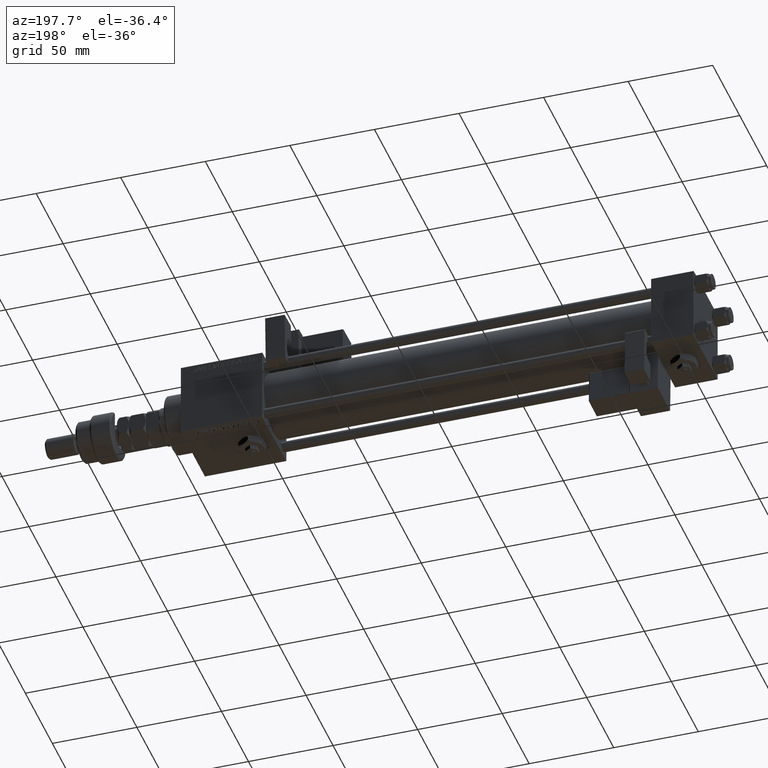
[diagram: clean part render]
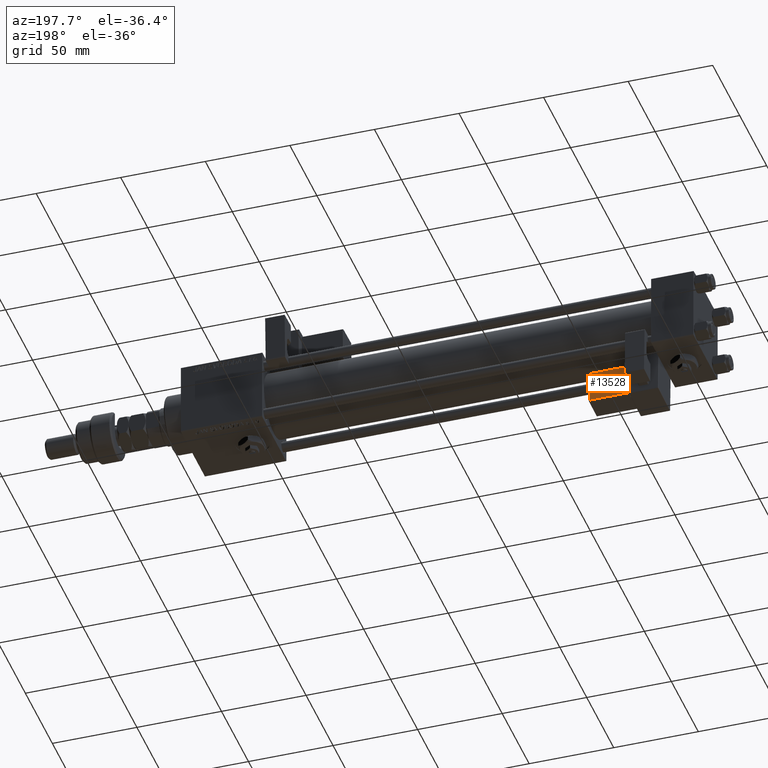
[diagram: same view with one face highlighted and labeled with its STEP entity id]
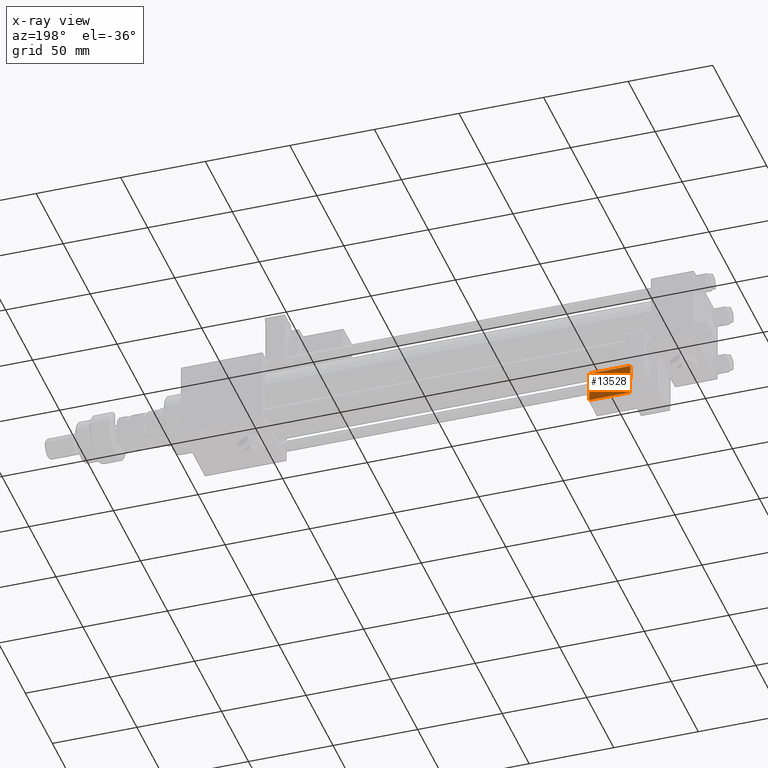
[diagram: x-ray of the same camera — body ghosted, the highlighted face saturated]
A machine part, auxiliary view. The second image highlights one B-rep face of the part: STEP entity #13528.
The next image is the same camera in x-ray: the body ghosted, the highlighted face saturated — about 0% of this face is hidden behind the body in this view.
In plain terms, the highlighted planar face has unit normal (0, -0.9994, -0.0353).
Its self-contained STEP definition (entity closure, byte-faithful):
#1843 = EDGE_CURVE ( 'NONE', #3329, #46901, #11866, .T. ) ;
#2242 = ORIENTED_EDGE ( 'NONE', *, *, #14323, .T. ) ;
#2860 = CARTESIAN_POINT ( 'NONE',  ( 33.25000000000000000, -15.25000000000000000, 2.500000000000009326 ) ) ;
#3329 = VERTEX_POINT ( 'NONE', #30387 ) ;
#4020 = CARTESIAN_POINT ( 'NONE',  ( 33.25000000000000000, -15.25000000000000000, 21.50000000000000355 ) ) ;
#4927 = LINE ( 'NONE', #31349, #41363 ) ;
#6321 = VECTOR ( 'NONE', #42492, 1000.000000000000000 ) ;
#7796 = DIRECTION ( 'NONE',  ( -1.334402673828313339E-16, 0.000000000000000000, 1.000000000000000000 ) ) ;
#11866 = LINE ( 'NONE', #42644, #54434 ) ;
#13528 = ADVANCED_FACE ( 'NONE', ( #16837 ), #30181, .F. ) ;
#14323 = EDGE_CURVE ( 'NONE', #21414, #3329, #16641, .T. ) ;
#16641 = LINE ( 'NONE', #51498, #6321 ) ;
#16837 = FACE_OUTER_BOUND ( 'NONE', #20055, .T. ) ;
#20055 = EDGE_LOOP ( 'NONE', ( #2242, #28950, #31221, #40991 ) ) ;
#21414 = VERTEX_POINT ( 'NONE', #2860 ) ;
#27696 = CARTESIAN_POINT ( 'NONE',  ( 33.25000000000000000, -15.25000000000000000, 2.000000000000008438 ) ) ;
#28950 = ORIENTED_EDGE ( 'NONE', *, *, #1843, .T. ) ;
#30181 = PLANE ( 'NONE',  #52258 ) ;
#30387 = CARTESIAN_POINT ( 'NONE',  ( 9.250000000000003553, -15.25000000000000000, 2.500000000000005773 ) ) ;
#31221 = ORIENTED_EDGE ( 'NONE', *, *, #34435, .T. ) ;
#31349 = CARTESIAN_POINT ( 'NONE',  ( 33.75000000000000000, -15.25000000000000000, 21.50000000000000355 ) ) ;
#33971 = DIRECTION ( 'NONE',  ( 0.000000000000000000, -1.000000000000000000, 0.000000000000000000 ) ) ;
#34435 = EDGE_CURVE ( 'NONE', #46901, #55291, #4927, .T. ) ;
#34685 = CARTESIAN_POINT ( 'NONE',  ( 9.250000000000001776, -15.25000000000000000, 21.50000000000000000 ) ) ;
#40471 = DIRECTION ( 'NONE',  ( 1.734723475976807341E-16, -0.000000000000000000, -1.000000000000000000 ) ) ;
#40991 = ORIENTED_EDGE ( 'NONE', *, *, #47812, .T. ) ;
#41363 = VECTOR ( 'NONE', #49369, 1000.000000000000000 ) ;
#42492 = DIRECTION ( 'NONE',  ( -1.000000000000000000, 0.000000000000000000, -1.334402673828313339E-16 ) ) ;
#42644 = CARTESIAN_POINT ( 'NONE',  ( 9.250000000000001776, -15.25000000000000000, 22.00000000000000355 ) ) ;
#46901 = VERTEX_POINT ( 'NONE', #34685 ) ;
#47812 = EDGE_CURVE ( 'NONE', #55291, #21414, #49198, .T. ) ;
#47897 = CARTESIAN_POINT ( 'NONE',  ( 33.75000000000000000, -15.25000000000000000, 22.00000000000000711 ) ) ;
#49198 = LINE ( 'NONE', #27696, #52180 ) ;
#49369 = DIRECTION ( 'NONE',  ( 1.000000000000000000, -0.000000000000000000, 1.334402673828313339E-16 ) ) ;
#51498 = CARTESIAN_POINT ( 'NONE',  ( 33.75000000000000000, -15.25000000000000000, 2.500000000000009326 ) ) ;
#51695 = DIRECTION ( 'NONE',  ( 0.000000000000000000, -0.000000000000000000, -1.000000000000000000 ) ) ;
#52180 = VECTOR ( 'NONE', #40471, 1000.000000000000000 ) ;
#52258 = AXIS2_PLACEMENT_3D ( 'NONE', #47897, #33971, #51695 ) ;
#54434 = VECTOR ( 'NONE', #7796, 1000.000000000000000 ) ;
#55291 = VERTEX_POINT ( 'NONE', #4020 ) ;